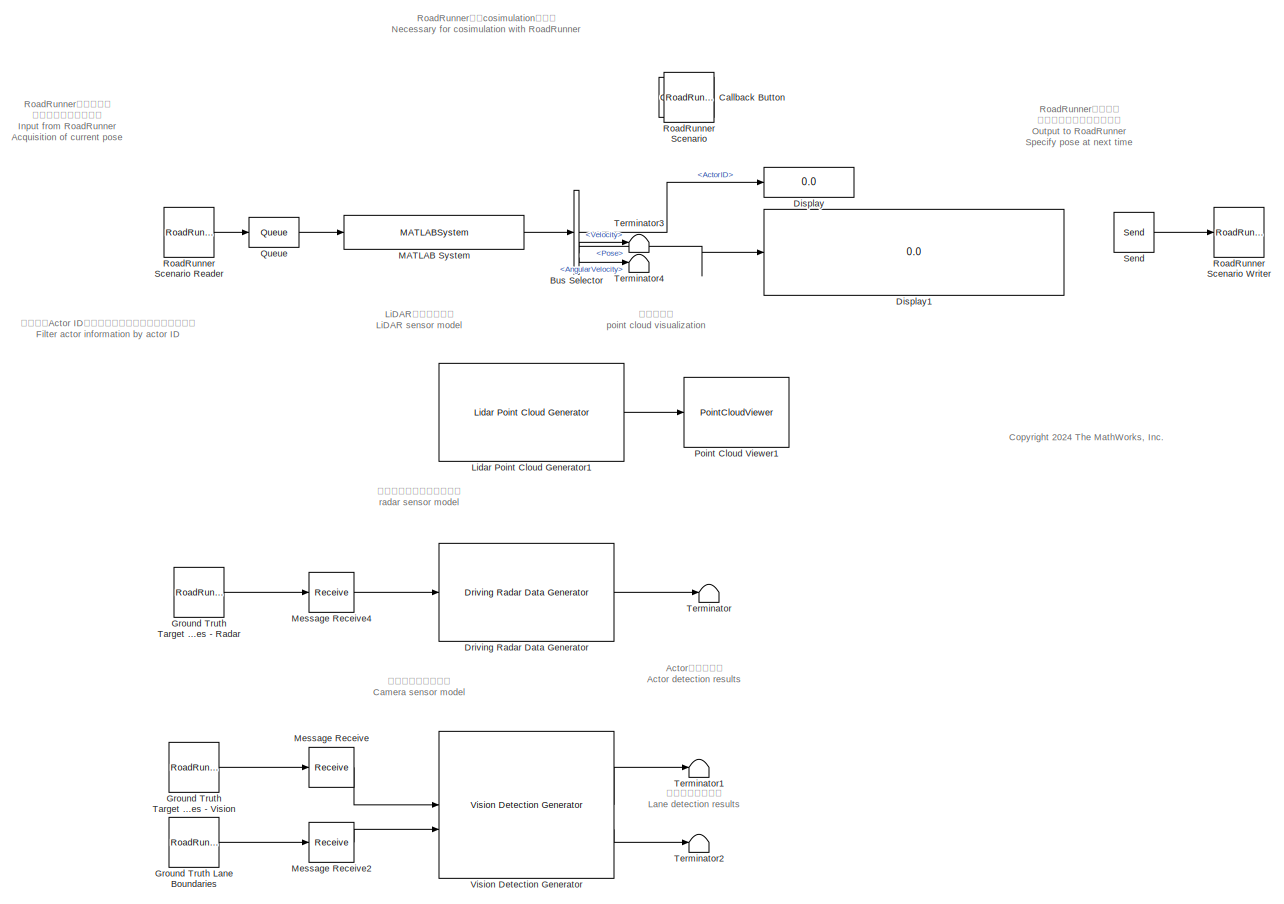
[diagram: root canvas - part 1/1, most of the canvas]
MODEL slx_52cd6d660a41
KIND model
CONFIG AbsTol = auto
CONFIG EnableMultiTasking = off
CONFIG FixedStep = simStepSize
CONFIG MaxStep = auto
CONFIG MinStep = auto
CONFIG PreLoadFcn = % To support Reader and Writer blocks, some bus objects must be loaded\nloadRoadRunnerBusObject();
CONFIG RelTol = 1e-3
CONFIG SampleTimeConstraint = Unconstrained
CONFIG SolverName = FixedStepAuto
CONFIG StartTime = 0
CONFIG StopTime = 500
BLOCK [BusSelector] Bus Selector
  OutputSignals = ActorID,Pose,Velocity,AngularVelocity
BLOCK [CustomCallbackButton] Callback Button
  Configuration = {"components":[{"name":"BackgroundImageComponent","settings":{"image":{"size":[0,0],"src":"default","srcOrientation":"Right"},"position":[0,0,1,1]}},{"name":"ButtonStateComponent","settings":{"buttonType":"momentary","clickFcn":"helpview('driving','SimulateRoadRunnerwithSimulink')","onValue":1,"position":[0,0,1,1],"pressDelay":"500","pressFcn":"","repeatInterval":"0","states":[{"horizontalAlignmen...<+1759ch>
  CustomBackgroundColor = {"color":[0.9568627451,0.9568627451,0.9568627451],"show":true}
BLOCK [Display] Display
  Decimation = 1
BLOCK [Display] Display1
  Decimation = 1
BLOCK [Reference] Driving Radar Data Generator  REF=drivingscenarioandsensors/Driving Radar Data Generator
  SourceBlock = drivingscenarioandsensors/Driving Radar Data Generator
  SourceType = drivingRadarDataGenerator
BLOCK [Reference] Ground Truth Lane Boundaries  REF=roadrunnerscenario/RoadRunner Scenario
Reader
  SourceBlock = roadrunnerscenario/RoadRunner Scenario\nReader
BLOCK [Reference] Ground Truth Target Poses - Radar  REF=roadrunnerscenario/RoadRunner Scenario
Reader
  SourceBlock = roadrunnerscenario/RoadRunner Scenario\nReader
BLOCK [Reference] Ground Truth Target Poses - Vision  REF=roadrunnerscenario/RoadRunner Scenario
Reader
  SourceBlock = roadrunnerscenario/RoadRunner Scenario\nReader
BLOCK [Reference] Lidar Point Cloud Generator1  REF=drivingscenarioandsensors/Lidar Point Cloud Generator
  SourceBlock = drivingscenarioandsensors/Lidar Point Cloud Generator
  SourceType = lidarPointCloudGenerator
BLOCK [MATLABSystem] MATLAB System
  ActorID = 1
  InputPortMessageModes = m
  MaskDisplay = disp('filterActorPose');\nport_label('input',1,'msg');\nport_label('output',1,'filteredActor');
  MaskType = filterActorPose
  OutputBusName = BusActorRuntime
  SampleTime = -1
  System = filterActorPose
BLOCK [Receive] Message Receive
  InputPortMap = u0
  InputPortMessageModes = m
  OutputPortMap = o1
  SampleTime = simStepSize
  UseInternalQueue = off
BLOCK [Receive] Message Receive2
  InputPortMap = u0
  InputPortMessageModes = m
  OutputPortMap = o1
  SampleTime = simStepSize
  UseInternalQueue = off
BLOCK [Receive] Message Receive4
  InputPortMap = u0
  InputPortMessageModes = m
  OutputPortMap = o1
  SampleTime = simStepSize
  UseInternalQueue = off
BLOCK [PointCloudViewer] Point Cloud Viewer1
  FigPos = [661 707 598.4 335.2]
  ScopeSpecificationString = vipscopes.PointCloudViewerScopeCfg('CurrentConfiguration', extmgr.ConfigurationSet(extmgr.Configuration('Core','General UI',true),extmgr.Configuration('Core','Source UI',true),extmgr.Configuration('Sources','WiredSimulink',true),extmgr.Configuration('Visuals','Point Cloud',true)),'Version','2024b','Position',[661 372 598.4 335.2])
BLOCK [Queue] Queue
  Capacity = 16
  InputPortMap = u0
  InputPortMessageModes = m
  OutputPortMap = o5
  OutputPortMessageModes = m
  OverwriteOldest = on
  QueueType = LIFO
BLOCK [Reference] RoadRunner Scenario  REF=roadrunnerscenario/RoadRunner Scenario
  SourceBlock = roadrunnerscenario/RoadRunner Scenario
BLOCK [RoadRunnerScenarioReader] RoadRunner Scenario Reader
  Filter = None
  OutputPortMap = o0
  OutputPortMessageModes = m
  SampleTime = simStepSize
  TopicType = Actor Pose
  VehicleType = Vehicle Specifications
BLOCK [RoadRunnerScenarioWriter] RoadRunner Scenario Writer
  Commented = on
  InputPortMap = u0
  InputPortMessageModes = m
  TopicType = Actor Pose
  VehicleType = Vehicle Pose
BLOCK [Send] Send
  Commented = on
  InputPortMap = u1
  OutputPortMessageModes = m
BLOCK [Terminator] Terminator
BLOCK [Terminator] Terminator1
BLOCK [Terminator] Terminator2
BLOCK [Terminator] Terminator3
BLOCK [Terminator] Terminator4
BLOCK [Reference] Vision Detection Generator  REF=drivingscenarioandsensors/Vision Detection Generator
  SourceBlock = drivingscenarioandsensors/Vision Detection Generator
  SourceType = visionDetectionGenerator
ANNOTATION (root): Actorの検出結果 Actor detection results
ANNOTATION (root): <copyright redacted>
ANNOTATION (root): LiDARセンサモデル LiDAR sensor model
ANNOTATION (root): RoadRunnerからの入力 現在位置・姿勢の取得 Input from RoadRunner Acquisition of current pose
ANNOTATION (root): RoadRunnerとのcosimulationに必要 Necessary for cosimulation with RoadRunner
ANNOTATION (root): RoadRunnerへの出力 次時刻の位置・姿勢を指定 Output to RoadRunner Specify pose at next time
ANNOTATION (root): カメラセンサモデル Camera sensor model
ANNOTATION (root): ミリ波レーダセンサモデル radar sensor model
ANNOTATION (root): レーンの検出結果 Lane detection results
ANNOTATION (root): 指定したActor IDのアクター情報をフィルタして取得 Filter actor information by actor ID
ANNOTATION (root): 点群可視化 point cloud visualization
LINE Bus Selector:1 -> Display:1
LINE Bus Selector:2 -> Display1:1
LINE Bus Selector:3 -> Terminator3:1
LINE Bus Selector:4 -> Terminator4:1
LINE Driving Radar Data Generator:1 -> Terminator:1
LINE Ground Truth Lane Boundaries:1 -> Message Receive2:1
LINE Ground Truth Target Poses - Radar:1 -> Message Receive4:1
LINE Ground Truth Target Poses - Vision:1 -> Message Receive:1
LINE Lidar Point Cloud Generator1:1 -> Point Cloud Viewer1:1
LINE MATLAB System:1 -> Bus Selector:1
LINE Message Receive2:1 -> Vision Detection Generator:2
LINE Message Receive4:1 -> Driving Radar Data Generator:1
LINE Message Receive:1 -> Vision Detection Generator:1
LINE Queue:1 -> MATLAB System:1
LINE RoadRunner Scenario Reader:1 -> Queue:1
LINE Send:1 -> RoadRunner Scenario Writer:1
LINE Vision Detection Generator:1 -> Terminator1:1
LINE Vision Detection Generator:2 -> Terminator2:1
